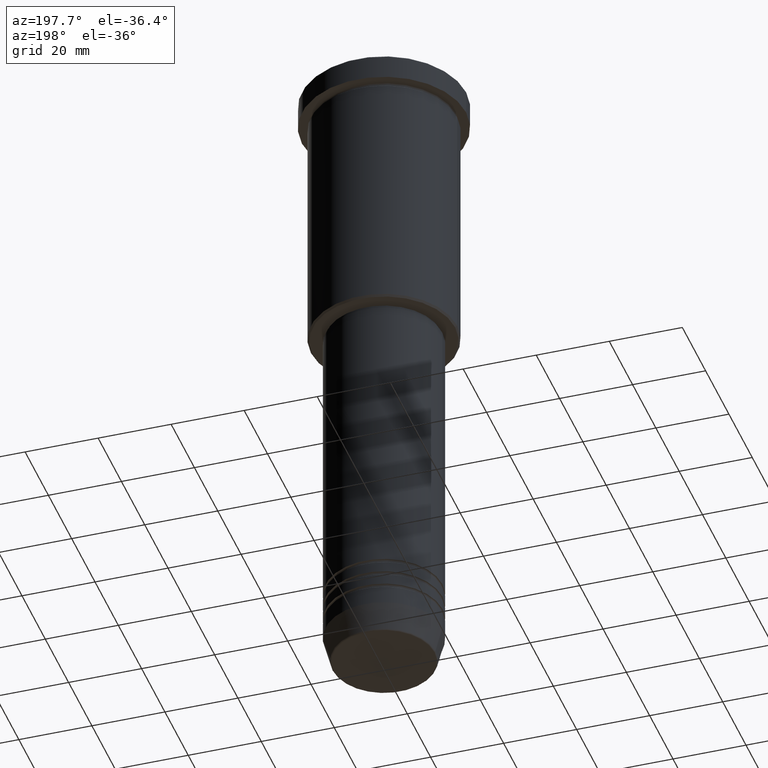
[diagram: clean part render]
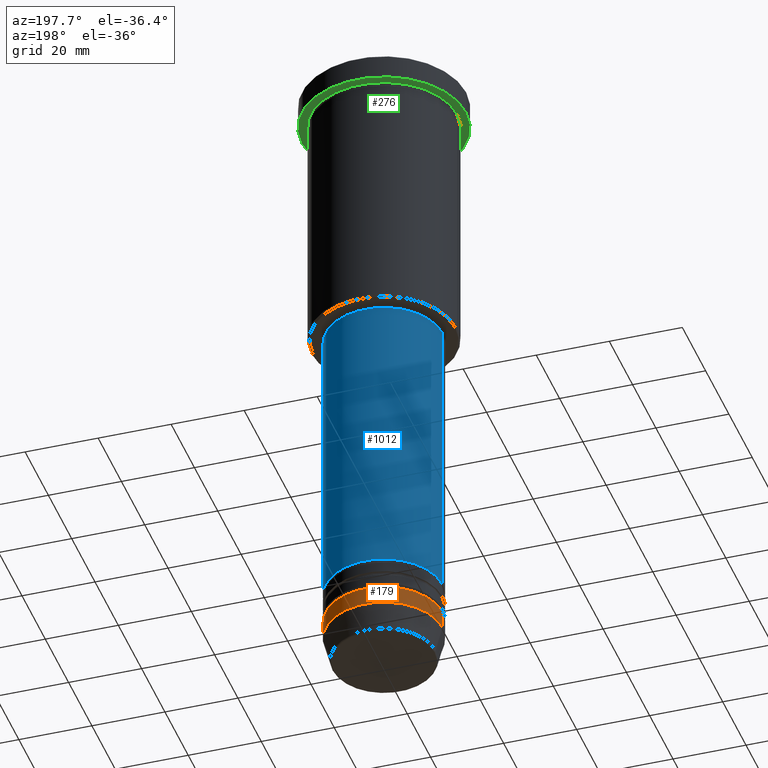
[diagram: same view with three faces highlighted in distinct colors, each labeled with its STEP entity id]
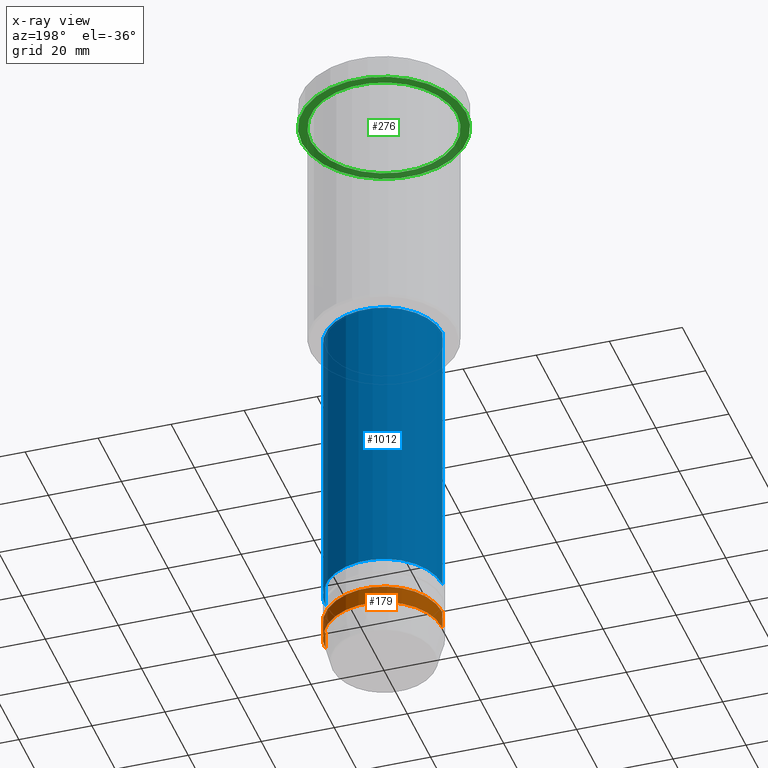
[diagram: x-ray of the same camera — body ghosted, the three highlighted faces saturated]
A machine part, auxiliary view with three faces highlighted in distinct colors.
The next image is the same camera in x-ray (body ghosted, the three faces saturated) — at least one of them is partly hidden behind the body in this view.
Their STEP definitions:

[orange] entity #179 — the highlighted cylindrical surface (partial cylindrical patch) has radius 16 mm, axis along (-0, -0, 1).
#27 = CARTESIAN_POINT ( 'NONE',  ( -16.00000000000000000, 1.959434878635765131E-15, 0.000000000000000000 ) ) ;
#32 = DIRECTION ( 'NONE',  ( 1.000000000000000000, 0.000000000000000000, 0.000000000000000000 ) ) ;
#34 = CARTESIAN_POINT ( 'NONE',  ( 0.000000000000000000, 0.000000000000000000, 0.000000000000000000 ) ) ;
#47 = DIRECTION ( 'NONE',  ( 1.000000000000000000, 0.000000000000000000, 0.000000000000000000 ) ) ;
#77 = CIRCLE ( 'NONE', #895, 16.00000000000000000 ) ;
#78 = CIRCLE ( 'NONE', #508, 16.00000000000000000 ) ;
#85 = VERTEX_POINT ( 'NONE', #189 ) ;
#93 = LINE ( 'NONE', #447, #1103 ) ;
#122 = CARTESIAN_POINT ( 'NONE',  ( -16.00000000000000000, 1.959434878635765131E-15, -167.5000000000000000 ) ) ;
#178 = CARTESIAN_POINT ( 'NONE',  ( 16.00000000000000000, 0.000000000000000000, -172.5000000000000284 ) ) ;
#179 = ADVANCED_FACE ( 'NONE', ( #304 ), #482, .T. ) ;
#189 = CARTESIAN_POINT ( 'NONE',  ( -16.00000000000000000, 1.959434878635765131E-15, -172.5000000000000284 ) ) ;
#203 = DIRECTION ( 'NONE',  ( -0.000000000000000000, -0.000000000000000000, 1.000000000000000000 ) ) ;
#215 = ORIENTED_EDGE ( 'NONE', *, *, #962, .F. ) ;
#220 = EDGE_CURVE ( 'NONE', #608, #620, #77, .T. ) ;
#224 = AXIS2_PLACEMENT_3D ( 'NONE', #34, #575, #47 ) ;
#304 = FACE_OUTER_BOUND ( 'NONE', #951, .T. ) ;
#384 = DIRECTION ( 'NONE',  ( -0.000000000000000000, -0.000000000000000000, 1.000000000000000000 ) ) ;
#402 = DIRECTION ( 'NONE',  ( 1.000000000000000000, 0.000000000000000000, 0.000000000000000000 ) ) ;
#447 = CARTESIAN_POINT ( 'NONE',  ( 16.00000000000000000, 0.000000000000000000, 0.000000000000000000 ) ) ;
#480 = VERTEX_POINT ( 'NONE', #178 ) ;
#482 = CYLINDRICAL_SURFACE ( 'NONE', #224, 16.00000000000000000 ) ;
#508 = AXIS2_PLACEMENT_3D ( 'NONE', #859, #203, #32 ) ;
#520 = ORIENTED_EDGE ( 'NONE', *, *, #562, .T. ) ;
#560 = LINE ( 'NONE', #27, #1049 ) ;
#562 = EDGE_CURVE ( 'NONE', #480, #85, #78, .T. ) ;
#575 = DIRECTION ( 'NONE',  ( -0.000000000000000000, -0.000000000000000000, 1.000000000000000000 ) ) ;
#576 = ORIENTED_EDGE ( 'NONE', *, *, #604, .T. ) ;
#604 = EDGE_CURVE ( 'NONE', #85, #620, #560, .T. ) ;
#608 = VERTEX_POINT ( 'NONE', #937 ) ;
#620 = VERTEX_POINT ( 'NONE', #122 ) ;
#859 = CARTESIAN_POINT ( 'NONE',  ( 0.000000000000000000, 0.000000000000000000, -172.5000000000000284 ) ) ;
#895 = AXIS2_PLACEMENT_3D ( 'NONE', #1033, #1040, #402 ) ;
#937 = CARTESIAN_POINT ( 'NONE',  ( 16.00000000000000000, 0.000000000000000000, -167.5000000000000000 ) ) ;
#951 = EDGE_LOOP ( 'NONE', ( #520, #576, #1035, #215 ) ) ;
#962 = EDGE_CURVE ( 'NONE', #480, #608, #93, .T. ) ;
#1033 = CARTESIAN_POINT ( 'NONE',  ( 0.000000000000000000, 0.000000000000000000, -167.5000000000000000 ) ) ;
#1035 = ORIENTED_EDGE ( 'NONE', *, *, #220, .F. ) ;
#1038 = DIRECTION ( 'NONE',  ( -0.000000000000000000, -0.000000000000000000, 1.000000000000000000 ) ) ;
#1040 = DIRECTION ( 'NONE',  ( -0.000000000000000000, -0.000000000000000000, 1.000000000000000000 ) ) ;
#1049 = VECTOR ( 'NONE', #384, 1000.000000000000000 ) ;
#1103 = VECTOR ( 'NONE', #1038, 1000.000000000000000 ) ;

[blue] entity #1012 — the highlighted cylindrical surface (partial cylindrical patch) has radius 16 mm, axis along (-0, -0, 1).
#3 = AXIS2_PLACEMENT_3D ( 'NONE', #1004, #985, #428 ) ;
#30 = CARTESIAN_POINT ( 'NONE',  ( 0.000000000000000000, 0.000000000000000000, 0.000000000000000000 ) ) ;
#45 = CARTESIAN_POINT ( 'NONE',  ( -16.00000000000000000, 1.959434878635765131E-15, 0.000000000000000000 ) ) ;
#134 = LINE ( 'NONE', #45, #726 ) ;
#144 = ORIENTED_EDGE ( 'NONE', *, *, #868, .F. ) ;
#160 = EDGE_CURVE ( 'NONE', #758, #241, #487, .T. ) ;
#169 = CARTESIAN_POINT ( 'NONE',  ( 16.00000000000000000, 0.000000000000000000, 0.000000000000000000 ) ) ;
#204 = DIRECTION ( 'NONE',  ( 1.000000000000000000, 0.000000000000000000, 0.000000000000000000 ) ) ;
#217 = CARTESIAN_POINT ( 'NONE',  ( 16.00000000000000000, 0.000000000000000000, -77.00000000000004263 ) ) ;
#231 = VERTEX_POINT ( 'NONE', #217 ) ;
#241 = VERTEX_POINT ( 'NONE', #1110 ) ;
#251 = EDGE_LOOP ( 'NONE', ( #430, #891, #870, #144 ) ) ;
#273 = DIRECTION ( 'NONE',  ( -0.000000000000000000, -0.000000000000000000, 1.000000000000000000 ) ) ;
#386 = DIRECTION ( 'NONE',  ( -0.000000000000000000, -0.000000000000000000, 1.000000000000000000 ) ) ;
#401 = DIRECTION ( 'NONE',  ( -0.000000000000000000, -0.000000000000000000, 1.000000000000000000 ) ) ;
#428 = DIRECTION ( 'NONE',  ( 1.000000000000000000, 0.000000000000000000, 0.000000000000000000 ) ) ;
#430 = ORIENTED_EDGE ( 'NONE', *, *, #160, .T. ) ;
#487 = CIRCLE ( 'NONE', #990, 16.00000000000000000 ) ;
#638 = DIRECTION ( 'NONE',  ( 1.000000000000000000, 0.000000000000000000, 0.000000000000000000 ) ) ;
#653 = VERTEX_POINT ( 'NONE', #745 ) ;
#725 = LINE ( 'NONE', #169, #917 ) ;
#726 = VECTOR ( 'NONE', #401, 1000.000000000000000 ) ;
#745 = CARTESIAN_POINT ( 'NONE',  ( -16.00000000000000000, 1.959434878635765131E-15, -77.00000000000004263 ) ) ;
#757 = DIRECTION ( 'NONE',  ( -0.000000000000000000, -0.000000000000000000, 1.000000000000000000 ) ) ;
#758 = VERTEX_POINT ( 'NONE', #964 ) ;
#787 = CIRCLE ( 'NONE', #3, 16.00000000000000000 ) ;
#806 = AXIS2_PLACEMENT_3D ( 'NONE', #30, #386, #638 ) ;
#827 = EDGE_CURVE ( 'NONE', #241, #653, #134, .T. ) ;
#851 = FACE_OUTER_BOUND ( 'NONE', #251, .T. ) ;
#857 = CYLINDRICAL_SURFACE ( 'NONE', #806, 16.00000000000000000 ) ;
#868 = EDGE_CURVE ( 'NONE', #758, #231, #725, .T. ) ;
#870 = ORIENTED_EDGE ( 'NONE', *, *, #1163, .F. ) ;
#891 = ORIENTED_EDGE ( 'NONE', *, *, #827, .T. ) ;
#917 = VECTOR ( 'NONE', #273, 1000.000000000000000 ) ;
#943 = CARTESIAN_POINT ( 'NONE',  ( 0.000000000000000000, 0.000000000000000000, -158.5000000000000000 ) ) ;
#964 = CARTESIAN_POINT ( 'NONE',  ( 16.00000000000000000, 0.000000000000000000, -158.5000000000000000 ) ) ;
#985 = DIRECTION ( 'NONE',  ( -0.000000000000000000, -0.000000000000000000, 1.000000000000000000 ) ) ;
#990 = AXIS2_PLACEMENT_3D ( 'NONE', #943, #757, #204 ) ;
#1004 = CARTESIAN_POINT ( 'NONE',  ( 0.000000000000000000, 0.000000000000000000, -77.00000000000004263 ) ) ;
#1012 = ADVANCED_FACE ( 'NONE', ( #851 ), #857, .T. ) ;
#1110 = CARTESIAN_POINT ( 'NONE',  ( -16.00000000000000000, 1.959434878635765131E-15, -158.5000000000000000 ) ) ;
#1163 = EDGE_CURVE ( 'NONE', #231, #653, #787, .T. ) ;

[green] entity #276 — the highlighted planar face has unit normal (0, 0, -1).
#8 = DIRECTION ( 'NONE',  ( -1.000000000000000000, 0.000000000000000000, 0.000000000000000000 ) ) ;
#120 = CARTESIAN_POINT ( 'NONE',  ( 22.50000000000000000, 0.000000000000000000, -6.999999999999995559 ) ) ;
#136 = ORIENTED_EDGE ( 'NONE', *, *, #413, .T. ) ;
#152 = CIRCLE ( 'NONE', #588, 22.50000000000000000 ) ;
#229 = CARTESIAN_POINT ( 'NONE',  ( -20.00000000000000000, 0.000000000000000000, -6.999999999999995559 ) ) ;
#236 = DIRECTION ( 'NONE',  ( -0.000000000000000000, -0.000000000000000000, 1.000000000000000000 ) ) ;
#258 = CARTESIAN_POINT ( 'NONE',  ( -22.50000000000000000, 2.755455298081544778E-15, -6.999999999999995559 ) ) ;
#276 = ADVANCED_FACE ( 'NONE', ( #771, #649 ), #1132, .T. ) ;
#292 = EDGE_LOOP ( 'NONE', ( #136, #1075 ) ) ;
#309 = CARTESIAN_POINT ( 'NONE',  ( 0.000000000000000000, 22.50000000000000000, -6.999999999999995559 ) ) ;
#313 = CARTESIAN_POINT ( 'NONE',  ( 0.000000000000000000, 0.000000000000000000, -6.999999999999995559 ) ) ;
#345 = EDGE_CURVE ( 'NONE', #944, #968, #525, .T. ) ;
#353 = DIRECTION ( 'NONE',  ( -0.000000000000000000, -0.000000000000000000, 1.000000000000000000 ) ) ;
#413 = EDGE_CURVE ( 'NONE', #767, #1148, #723, .T. ) ;
#446 = AXIS2_PLACEMENT_3D ( 'NONE', #309, #1044, #585 ) ;
#491 = AXIS2_PLACEMENT_3D ( 'NONE', #1077, #1080, #1172 ) ;
#525 = CIRCLE ( 'NONE', #1030, 22.50000000000000000 ) ;
#539 = CARTESIAN_POINT ( 'NONE',  ( 0.000000000000000000, 0.000000000000000000, -6.999999999999995559 ) ) ;
#549 = AXIS2_PLACEMENT_3D ( 'NONE', #539, #353, #8 ) ;
#585 = DIRECTION ( 'NONE',  ( -1.000000000000000000, 0.000000000000000000, -0.000000000000000000 ) ) ;
#588 = AXIS2_PLACEMENT_3D ( 'NONE', #313, #236, #606 ) ;
#606 = DIRECTION ( 'NONE',  ( 1.000000000000000000, 0.000000000000000000, 0.000000000000000000 ) ) ;
#632 = CARTESIAN_POINT ( 'NONE',  ( 20.00000000000000000, 2.449293598294706513E-15, -6.999999999999995559 ) ) ;
#649 = FACE_OUTER_BOUND ( 'NONE', #801, .T. ) ;
#690 = DIRECTION ( 'NONE',  ( -0.000000000000000000, -0.000000000000000000, 1.000000000000000000 ) ) ;
#723 = CIRCLE ( 'NONE', #549, 20.00000000000000000 ) ;
#739 = EDGE_CURVE ( 'NONE', #968, #944, #152, .T. ) ;
#752 = ORIENTED_EDGE ( 'NONE', *, *, #739, .F. ) ;
#767 = VERTEX_POINT ( 'NONE', #229 ) ;
#771 = FACE_BOUND ( 'NONE', #292, .T. ) ;
#801 = EDGE_LOOP ( 'NONE', ( #752, #850 ) ) ;
#850 = ORIENTED_EDGE ( 'NONE', *, *, #345, .F. ) ;
#944 = VERTEX_POINT ( 'NONE', #258 ) ;
#953 = EDGE_CURVE ( 'NONE', #1148, #767, #1011, .T. ) ;
#959 = CARTESIAN_POINT ( 'NONE',  ( 0.000000000000000000, 0.000000000000000000, -6.999999999999995559 ) ) ;
#968 = VERTEX_POINT ( 'NONE', #120 ) ;
#983 = DIRECTION ( 'NONE',  ( 1.000000000000000000, 0.000000000000000000, 0.000000000000000000 ) ) ;
#1011 = CIRCLE ( 'NONE', #491, 20.00000000000000000 ) ;
#1030 = AXIS2_PLACEMENT_3D ( 'NONE', #959, #690, #983 ) ;
#1044 = DIRECTION ( 'NONE',  ( 0.000000000000000000, 0.000000000000000000, -1.000000000000000000 ) ) ;
#1075 = ORIENTED_EDGE ( 'NONE', *, *, #953, .T. ) ;
#1077 = CARTESIAN_POINT ( 'NONE',  ( 0.000000000000000000, 0.000000000000000000, -6.999999999999995559 ) ) ;
#1080 = DIRECTION ( 'NONE',  ( -0.000000000000000000, -0.000000000000000000, 1.000000000000000000 ) ) ;
#1132 = PLANE ( 'NONE',  #446 ) ;
#1148 = VERTEX_POINT ( 'NONE', #632 ) ;
#1172 = DIRECTION ( 'NONE',  ( -1.000000000000000000, 0.000000000000000000, 0.000000000000000000 ) ) ;